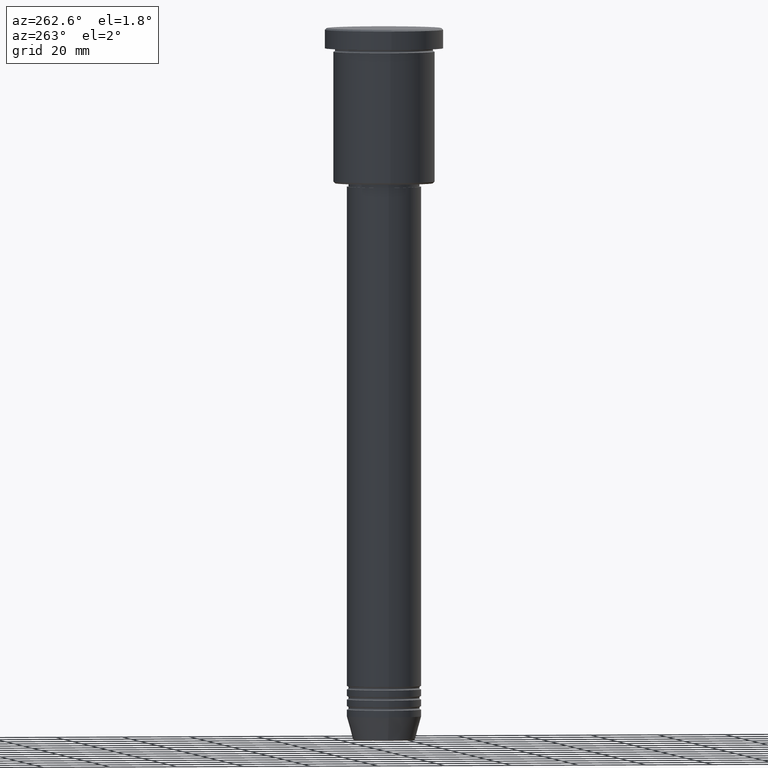
[diagram: clean part render]
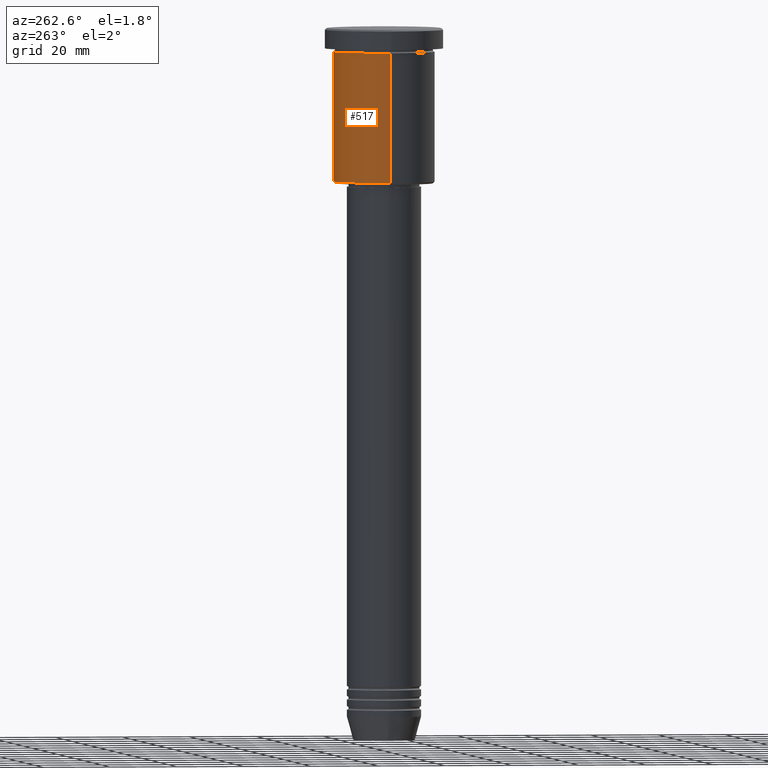
[diagram: same view with one face highlighted and labeled with its STEP entity id]
A machine part, auxiliary view. The second image highlights one B-rep face of the part: STEP entity #517.
In plain terms, the highlighted cylindrical surface (partial cylindrical patch) has radius 15 mm, axis along (-0, -0, 1).
Its self-contained STEP definition (entity closure, byte-faithful):
#4 = DIRECTION ( 'NONE',  ( -0.000000000000000000, -0.000000000000000000, 1.000000000000000000 ) ) ;
#15 = DIRECTION ( 'NONE',  ( -0.000000000000000000, -0.000000000000000000, 1.000000000000000000 ) ) ;
#40 = CARTESIAN_POINT ( 'NONE',  ( 0.000000000000000000, 0.000000000000000000, 0.000000000000000000 ) ) ;
#70 = VECTOR ( 'NONE', #446, 1000.000000000000000 ) ;
#80 = EDGE_LOOP ( 'NONE', ( #755, #399, #1147, #1030 ) ) ;
#139 = VERTEX_POINT ( 'NONE', #628 ) ;
#173 = DIRECTION ( 'NONE',  ( -1.000000000000000000, 0.000000000000000000, 0.000000000000000000 ) ) ;
#187 = CARTESIAN_POINT ( 'NONE',  ( 0.000000000000000000, 0.000000000000000000, -45.50000000000000000 ) ) ;
#198 = FACE_OUTER_BOUND ( 'NONE', #80, .T. ) ;
#215 = EDGE_CURVE ( 'NONE', #139, #642, #613, .T. ) ;
#271 = CARTESIAN_POINT ( 'NONE',  ( 15.00000000000000000, 0.000000000000000000, 0.000000000000000000 ) ) ;
#359 = LINE ( 'NONE', #271, #371 ) ;
#371 = VECTOR ( 'NONE', #4, 1000.000000000000000 ) ;
#395 = CARTESIAN_POINT ( 'NONE',  ( 0.000000000000000000, 0.000000000000000000, -6.999999999999995559 ) ) ;
#399 = ORIENTED_EDGE ( 'NONE', *, *, #1140, .T. ) ;
#440 = CIRCLE ( 'NONE', #598, 15.00000000000000000 ) ;
#446 = DIRECTION ( 'NONE',  ( -0.000000000000000000, -0.000000000000000000, 1.000000000000000000 ) ) ;
#517 = ADVANCED_FACE ( 'NONE', ( #198 ), #839, .T. ) ;
#581 = DIRECTION ( 'NONE',  ( -0.000000000000000000, -0.000000000000000000, 1.000000000000000000 ) ) ;
#598 = AXIS2_PLACEMENT_3D ( 'NONE', #395, #581, #866 ) ;
#613 = CIRCLE ( 'NONE', #1031, 15.00000000000000000 ) ;
#628 = CARTESIAN_POINT ( 'NONE',  ( 15.00000000000000000, 0.000000000000000000, -45.50000000000000000 ) ) ;
#642 = VERTEX_POINT ( 'NONE', #903 ) ;
#750 = EDGE_CURVE ( 'NONE', #845, #879, #440, .T. ) ;
#755 = ORIENTED_EDGE ( 'NONE', *, *, #215, .T. ) ;
#801 = AXIS2_PLACEMENT_3D ( 'NONE', #40, #15, #1122 ) ;
#810 = CARTESIAN_POINT ( 'NONE',  ( -15.00000000000000000, 1.836970198721029589E-15, 0.000000000000000000 ) ) ;
#839 = CYLINDRICAL_SURFACE ( 'NONE', #801, 15.00000000000000000 ) ;
#845 = VERTEX_POINT ( 'NONE', #915 ) ;
#866 = DIRECTION ( 'NONE',  ( 1.000000000000000000, 0.000000000000000000, 0.000000000000000000 ) ) ;
#879 = VERTEX_POINT ( 'NONE', #1075 ) ;
#903 = CARTESIAN_POINT ( 'NONE',  ( -15.00000000000000000, 1.836970198721029589E-15, -45.50000000000000000 ) ) ;
#915 = CARTESIAN_POINT ( 'NONE',  ( 15.00000000000000000, 0.000000000000000000, -6.999999999999995559 ) ) ;
#920 = DIRECTION ( 'NONE',  ( -0.000000000000000000, -0.000000000000000000, 1.000000000000000000 ) ) ;
#936 = LINE ( 'NONE', #810, #70 ) ;
#1030 = ORIENTED_EDGE ( 'NONE', *, *, #1156, .F. ) ;
#1031 = AXIS2_PLACEMENT_3D ( 'NONE', #187, #920, #173 ) ;
#1075 = CARTESIAN_POINT ( 'NONE',  ( -15.00000000000000000, 1.836970198721029589E-15, -6.999999999999995559 ) ) ;
#1122 = DIRECTION ( 'NONE',  ( 1.000000000000000000, 0.000000000000000000, 0.000000000000000000 ) ) ;
#1140 = EDGE_CURVE ( 'NONE', #642, #879, #936, .T. ) ;
#1147 = ORIENTED_EDGE ( 'NONE', *, *, #750, .F. ) ;
#1156 = EDGE_CURVE ( 'NONE', #139, #845, #359, .T. ) ;